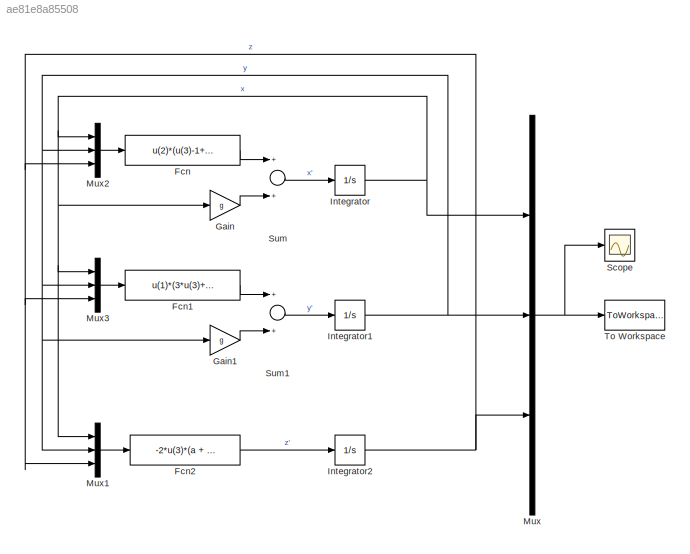
MODEL slx_ae81e8a85508
KIND model
BLOCK [Fcn] Fcn
  Expr = u(2)*(u(3)-1+(u(1)^2))
BLOCK [Fcn] Fcn1
  Expr = u(1)*(3*u(3)+1-(u(1)^2))
BLOCK [Fcn] Fcn2
  Expr = -2*u(3)*(a + u(1)*u(2))
BLOCK [Gain] Gain
  Gain = g
  OutDataTypeStr = Inherit: Inherit via internal rule
  ParamDataTypeStr = Inherit: Inherit via internal rule
  SaturateOnIntegerOverflow = off
BLOCK [Gain] Gain1
  Gain = g
  OutDataTypeStr = Inherit: Inherit via internal rule
  ParamDataTypeStr = Inherit: Inherit via internal rule
  SaturateOnIntegerOverflow = off
BLOCK [Integrator] Integrator
  InitialCondition = param.ic(1)
  Ports = [1, 1]
BLOCK [Integrator] Integrator1
  InitialCondition = param.ic(2)
  Ports = [1, 1]
BLOCK [Integrator] Integrator2
  InitialCondition = param.ic(3)
  Ports = [1, 1]
BLOCK [Mux] Mux
  DisplayOption = bar
  Inputs = 3
  Ports = [3, 1]
BLOCK [Mux] Mux1
  DisplayOption = bar
  Inputs = 3
  Ports = [3, 1]
BLOCK [Mux] Mux2
  DisplayOption = bar
  Inputs = 3
  Ports = [3, 1]
BLOCK [Mux] Mux3
  DisplayOption = bar
  Inputs = 3
  Ports = [3, 1]
BLOCK [Scope] Scope
  Floating = off
  LegendLocations = 0.69187     0.61712     0.18981     0.20157
  LimitDataPoints = off
  NumInputPorts = 1
  Ports = [1]
  ShowLegends = on
BLOCK [Sum] Sum
  InputSameDT = off
  OutDataTypeStr = Inherit: Inherit via internal rule
  Ports = [2, 1]
  SaturateOnIntegerOverflow = off
BLOCK [Sum] Sum1
  InputSameDT = off
  OutDataTypeStr = Inherit: Inherit via internal rule
  Ports = [2, 1]
  SaturateOnIntegerOverflow = off
BLOCK [ToWorkspace] To Workspace
  FixptAsFi = on
  MaxDataPoints = inf
  Ports = [1]
  SampleTime = -1
  Save2DSignal = 3-D array (concatenate along third dimension)
  SaveFormat = Timeseries
  VariableName = simout
LINE Fcn1:1 -> Sum1:1
LINE Fcn2:1 -> Integrator2:1
LINE Fcn:1 -> Sum:1
LINE Gain1:1 -> Sum1:2
LINE Gain:1 -> Sum:2
NET Integrator1:1 -> Gain1:1, Mux1:2, Mux2:2, Mux3:2, Mux:2
NET Integrator2:1 -> Mux1:3, Mux2:3, Mux3:3, Mux:3
NET Integrator:1 -> Gain:1, Mux1:1, Mux2:1, Mux3:1, Mux:1
LINE Mux1:1 -> Fcn2:1
LINE Mux2:1 -> Fcn:1
LINE Mux3:1 -> Fcn1:1
NET Mux:1 -> Scope:1, To Workspace:1
LINE Sum1:1 -> Integrator1:1
LINE Sum:1 -> Integrator:1
note: NET lines group one-source signal fan-out (src -> all destinations, sorted); 1:1 wires keep LINE
